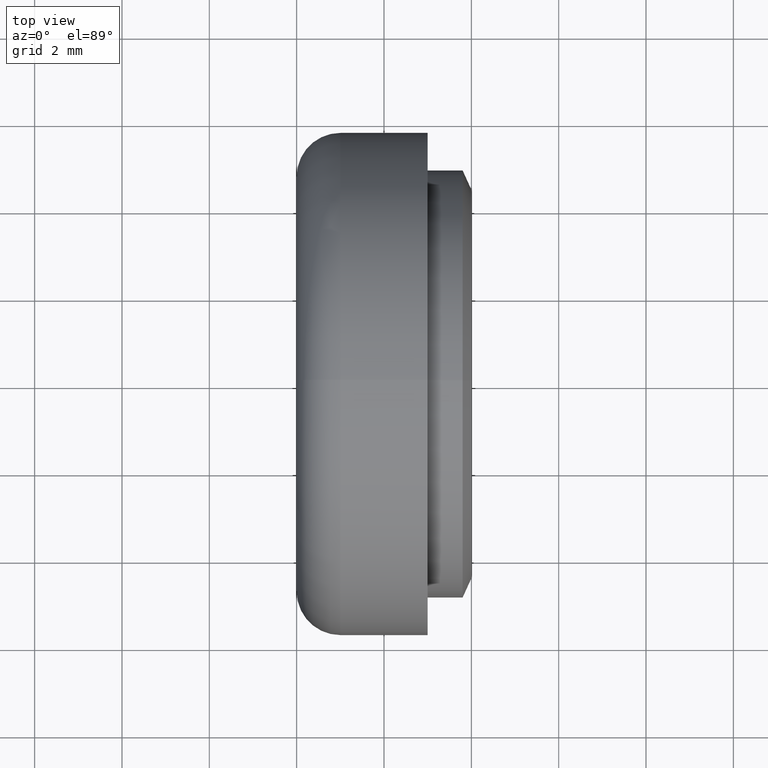
[diagram: clean part render]
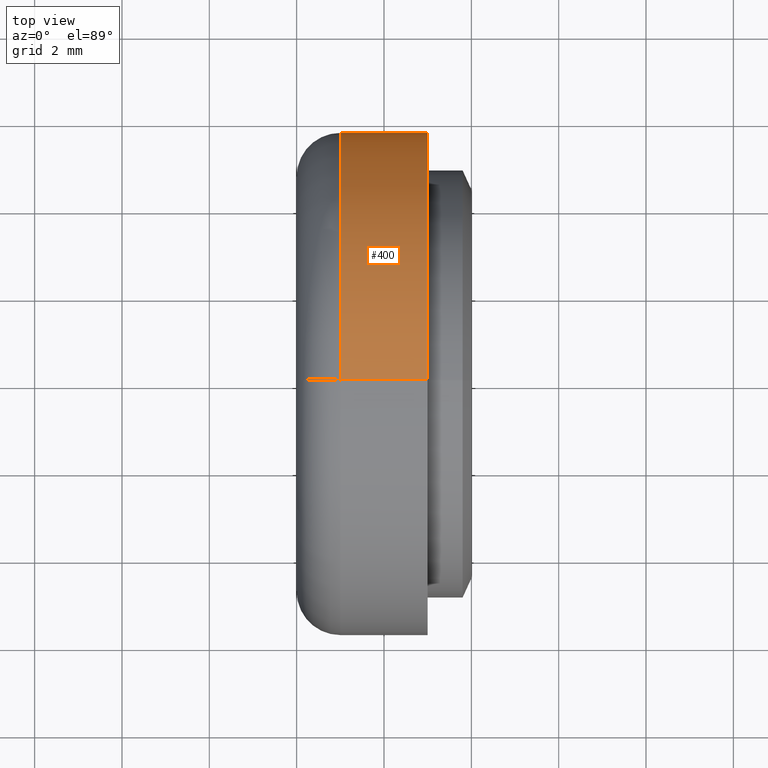
[diagram: same view with one face highlighted and labeled with its STEP entity id]
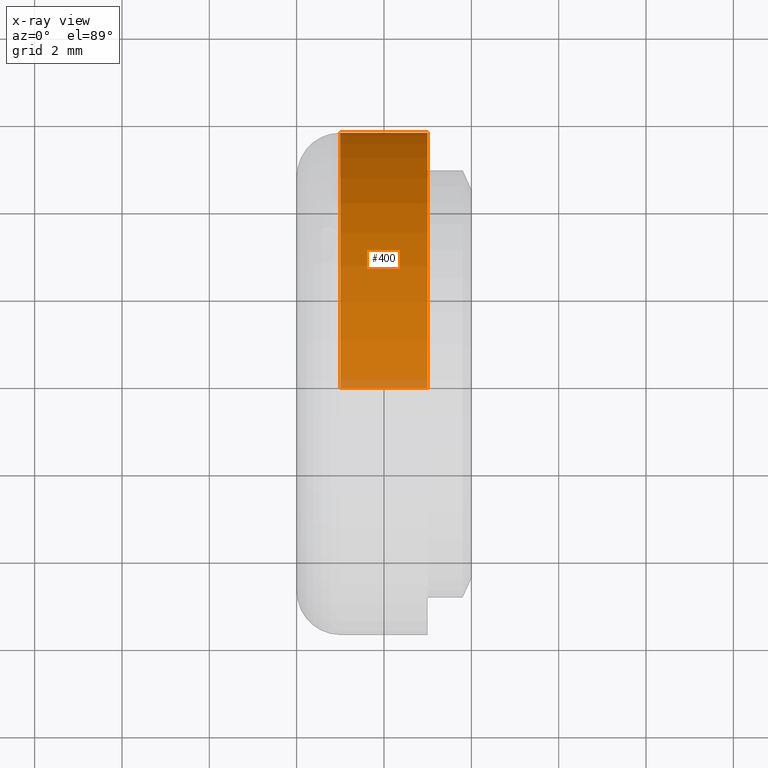
[diagram: x-ray of the same camera — body ghosted, the highlighted face saturated]
A machine part, top view. The second image highlights one B-rep face of the part: STEP entity #400.
The next image is the same camera in x-ray: the body ghosted, the highlighted face saturated — about 3% of this face is hidden behind the body in this view.
In plain terms, the highlighted cylindrical surface (partial cylindrical patch) has radius 5.75 mm, axis along (-1, -0, -0).
Its self-contained STEP definition (entity closure, byte-faithful):
#22 = VERTEX_POINT ( 'NONE', #92 ) ;
#28 = EDGE_CURVE ( 'NONE', #144, #571, #688, .T. ) ;
#62 = EDGE_CURVE ( 'NONE', #144, #437, #367, .T. ) ;
#72 = EDGE_CURVE ( 'NONE', #437, #22, #565, .T. ) ;
#92 = CARTESIAN_POINT ( 'NONE',  ( 1.000000000000000000, 0.0000000000000000000, 5.749999999999999100 ) ) ;
#93 = CARTESIAN_POINT ( 'NONE',  ( 3.000000000000000000, 0.0000000000000000000, 5.749999999999999100 ) ) ;
#144 = VERTEX_POINT ( 'NONE', #454 ) ;
#151 = EDGE_CURVE ( 'NONE', #571, #22, #333, .T. ) ;
#162 = DIRECTION ( 'NONE',  ( 1.000000000000000000, 0.0000000000000000000, 0.0000000000000000000 ) ) ;
#224 = ORIENTED_EDGE ( 'NONE', *, *, #72, .T. ) ;
#272 = DIRECTION ( 'NONE',  ( 1.000000000000000000, 0.0000000000000000000, 0.0000000000000000000 ) ) ;
#284 = VECTOR ( 'NONE', #494, 1000.000000000000000 ) ;
#288 = CARTESIAN_POINT ( 'NONE',  ( 1.000000000000000000, 7.041719095097279900E-016, -5.749999999999999100 ) ) ;
#333 = LINE ( 'NONE', #436, #284 ) ;
#336 = AXIS2_PLACEMENT_3D ( 'NONE', #605, #272, #653 ) ;
#367 = LINE ( 'NONE', #573, #407 ) ;
#382 = CYLINDRICAL_SURFACE ( 'NONE', #406, 5.749999999999999100 ) ;
#400 = ADVANCED_FACE ( 'NONE', ( #715 ), #382, .T. ) ;
#406 = AXIS2_PLACEMENT_3D ( 'NONE', #594, #535, #424 ) ;
#407 = VECTOR ( 'NONE', #476, 1000.000000000000000 ) ;
#424 = DIRECTION ( 'NONE',  ( 0.0000000000000000000, 0.0000000000000000000, 1.000000000000000000 ) ) ;
#434 = ORIENTED_EDGE ( 'NONE', *, *, #28, .F. ) ;
#436 = CARTESIAN_POINT ( 'NONE',  ( 3.000000000000000000, 0.0000000000000000000, 5.749999999999999100 ) ) ;
#437 = VERTEX_POINT ( 'NONE', #288 ) ;
#454 = CARTESIAN_POINT ( 'NONE',  ( 3.000000000000000000, 7.041719095097279900E-016, -5.749999999999999100 ) ) ;
#476 = DIRECTION ( 'NONE',  ( -1.000000000000000000, -0.0000000000000000000, -0.0000000000000000000 ) ) ;
#486 = AXIS2_PLACEMENT_3D ( 'NONE', #697, #162, #682 ) ;
#494 = DIRECTION ( 'NONE',  ( -1.000000000000000000, -0.0000000000000000000, -0.0000000000000000000 ) ) ;
#535 = DIRECTION ( 'NONE',  ( -1.000000000000000000, -0.0000000000000000000, -0.0000000000000000000 ) ) ;
#565 = CIRCLE ( 'NONE', #486, 5.749999999999999100 ) ;
#571 = VERTEX_POINT ( 'NONE', #93 ) ;
#573 = CARTESIAN_POINT ( 'NONE',  ( 3.000000000000000000, 7.041719095097279900E-016, -5.749999999999999100 ) ) ;
#594 = CARTESIAN_POINT ( 'NONE',  ( 3.000000000000000000, 0.0000000000000000000, 0.0000000000000000000 ) ) ;
#605 = CARTESIAN_POINT ( 'NONE',  ( 3.000000000000000000, 0.0000000000000000000, 0.0000000000000000000 ) ) ;
#653 = DIRECTION ( 'NONE',  ( 0.0000000000000000000, 0.0000000000000000000, -1.000000000000000000 ) ) ;
#654 = ORIENTED_EDGE ( 'NONE', *, *, #62, .T. ) ;
#682 = DIRECTION ( 'NONE',  ( 0.0000000000000000000, 0.0000000000000000000, -1.000000000000000000 ) ) ;
#688 = CIRCLE ( 'NONE', #336, 5.749999999999999100 ) ;
#697 = CARTESIAN_POINT ( 'NONE',  ( 1.000000000000000000, 0.0000000000000000000, 0.0000000000000000000 ) ) ;
#701 = EDGE_LOOP ( 'NONE', ( #434, #654, #224, #723 ) ) ;
#715 = FACE_OUTER_BOUND ( 'NONE', #701, .T. ) ;
#723 = ORIENTED_EDGE ( 'NONE', *, *, #151, .F. ) ;